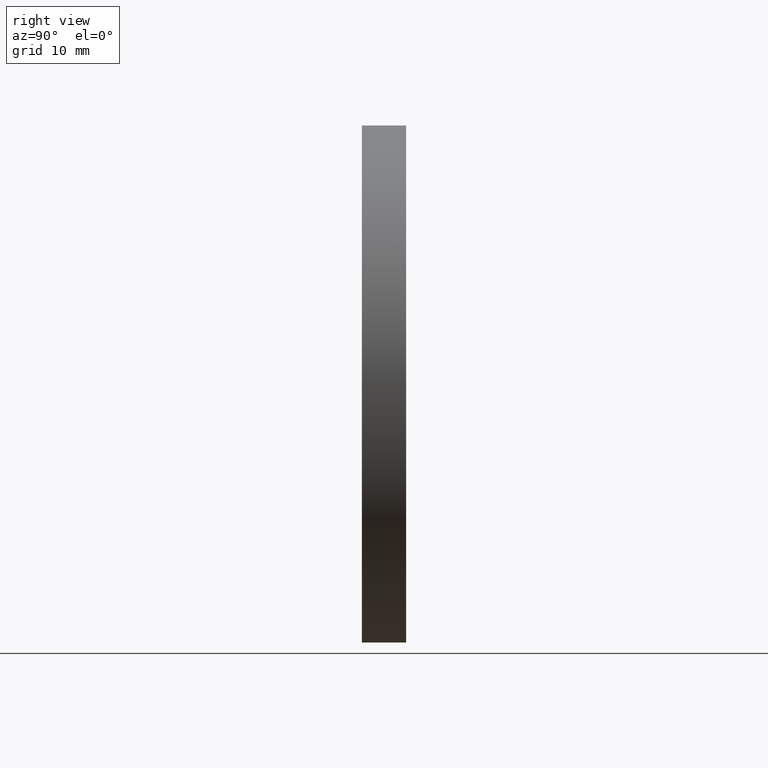
[diagram: clean part render]
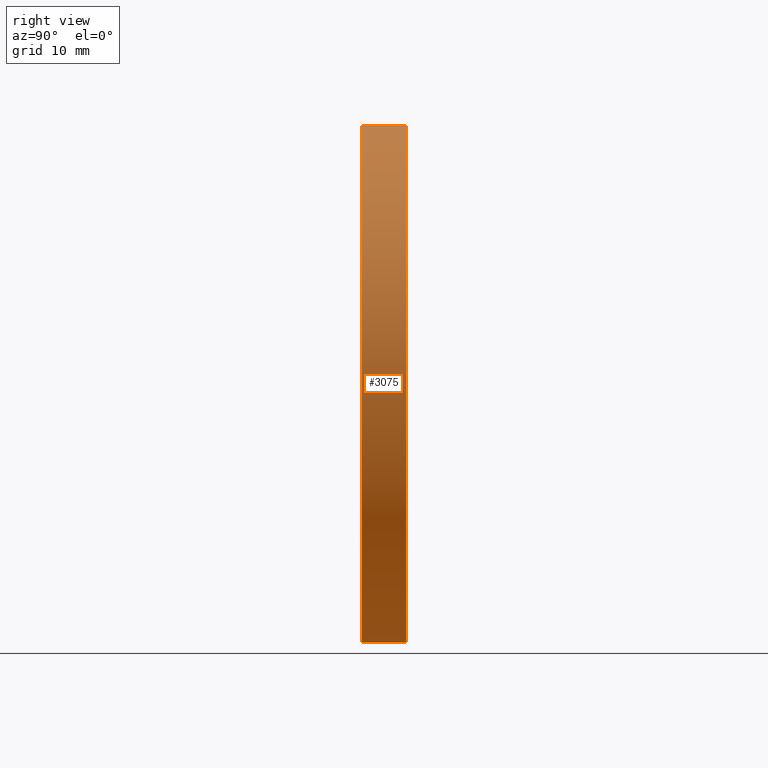
[diagram: same view with one face highlighted and labeled with its STEP entity id]
A machine part, right view. The second image highlights one B-rep face of the part: STEP entity #3075.
In plain terms, the highlighted cylindrical surface (partial cylindrical patch) has radius 35 mm, axis along (-0, -1, -0).
Its self-contained STEP definition (entity closure, byte-faithful):
#6 = CARTESIAN_POINT ( 'NONE',  ( 0.0000000000000000000, 6.000000000000000000, -35.00000000000000700 ) ) ;
#202 = VERTEX_POINT ( 'NONE', #8139 ) ;
#240 = CARTESIAN_POINT ( 'NONE',  ( 0.0000000000000000000, 6.000000000000000000, 0.0000000000000000000 ) ) ;
#609 = EDGE_LOOP ( 'NONE', ( #3457, #3544, #9871, #9922 ) ) ;
#1113 = AXIS2_PLACEMENT_3D ( 'NONE', #240, #7824, #6913 ) ;
#1634 = DIRECTION ( 'NONE',  ( 0.0000000000000000000, 0.0000000000000000000, -1.000000000000000000 ) ) ;
#2014 = CARTESIAN_POINT ( 'NONE',  ( 4.286263797015737300E-015, 6.000000000000000000, 35.00000000000000700 ) ) ;
#2228 = DIRECTION ( 'NONE',  ( -0.0000000000000000000, -1.000000000000000000, -0.0000000000000000000 ) ) ;
#2266 = CARTESIAN_POINT ( 'NONE',  ( 0.0000000000000000000, 6.000000000000000000, -35.00000000000000700 ) ) ;
#2454 = EDGE_CURVE ( 'NONE', #8079, #5493, #10043, .T. ) ;
#3075 = ADVANCED_FACE ( 'NONE', ( #6685 ), #8618, .T. ) ;
#3303 = CARTESIAN_POINT ( 'NONE',  ( 4.286263797015737300E-015, 0.0000000000000000000, 35.00000000000000700 ) ) ;
#3457 = ORIENTED_EDGE ( 'NONE', *, *, #8800, .F. ) ;
#3544 = ORIENTED_EDGE ( 'NONE', *, *, #10587, .T. ) ;
#3931 = DIRECTION ( 'NONE',  ( 0.0000000000000000000, 1.000000000000000000, 0.0000000000000000000 ) ) ;
#4168 = DIRECTION ( 'NONE',  ( -0.0000000000000000000, -1.000000000000000000, -0.0000000000000000000 ) ) ;
#5210 = AXIS2_PLACEMENT_3D ( 'NONE', #9115, #4168, #1634 ) ;
#5309 = EDGE_CURVE ( 'NONE', #10493, #5493, #8995, .T. ) ;
#5430 = DIRECTION ( 'NONE',  ( -0.0000000000000000000, -1.000000000000000000, -0.0000000000000000000 ) ) ;
#5493 = VERTEX_POINT ( 'NONE', #9126 ) ;
#6452 = LINE ( 'NONE', #2014, #10579 ) ;
#6685 = FACE_OUTER_BOUND ( 'NONE', #609, .T. ) ;
#6913 = DIRECTION ( 'NONE',  ( 0.0000000000000000000, 0.0000000000000000000, 1.000000000000000000 ) ) ;
#7133 = CARTESIAN_POINT ( 'NONE',  ( 0.0000000000000000000, 0.0000000000000000000, 0.0000000000000000000 ) ) ;
#7423 = VECTOR ( 'NONE', #2228, 1000.000000000000000 ) ;
#7824 = DIRECTION ( 'NONE',  ( 0.0000000000000000000, 1.000000000000000000, 0.0000000000000000000 ) ) ;
#8049 = CIRCLE ( 'NONE', #1113, 35.00000000000000700 ) ;
#8072 = AXIS2_PLACEMENT_3D ( 'NONE', #7133, #3931, #8766 ) ;
#8079 = VERTEX_POINT ( 'NONE', #3303 ) ;
#8139 = CARTESIAN_POINT ( 'NONE',  ( 4.286263797015737300E-015, 6.000000000000000000, 35.00000000000000700 ) ) ;
#8618 = CYLINDRICAL_SURFACE ( 'NONE', #5210, 35.00000000000000700 ) ;
#8766 = DIRECTION ( 'NONE',  ( 0.0000000000000000000, 0.0000000000000000000, 1.000000000000000000 ) ) ;
#8800 = EDGE_CURVE ( 'NONE', #202, #10493, #8049, .T. ) ;
#8995 = LINE ( 'NONE', #2266, #7423 ) ;
#9115 = CARTESIAN_POINT ( 'NONE',  ( 0.0000000000000000000, 6.000000000000000000, 0.0000000000000000000 ) ) ;
#9126 = CARTESIAN_POINT ( 'NONE',  ( 0.0000000000000000000, 0.0000000000000000000, -35.00000000000000700 ) ) ;
#9871 = ORIENTED_EDGE ( 'NONE', *, *, #2454, .T. ) ;
#9922 = ORIENTED_EDGE ( 'NONE', *, *, #5309, .F. ) ;
#10043 = CIRCLE ( 'NONE', #8072, 35.00000000000000700 ) ;
#10493 = VERTEX_POINT ( 'NONE', #6 ) ;
#10579 = VECTOR ( 'NONE', #5430, 1000.000000000000000 ) ;
#10587 = EDGE_CURVE ( 'NONE', #202, #8079, #6452, .T. ) ;